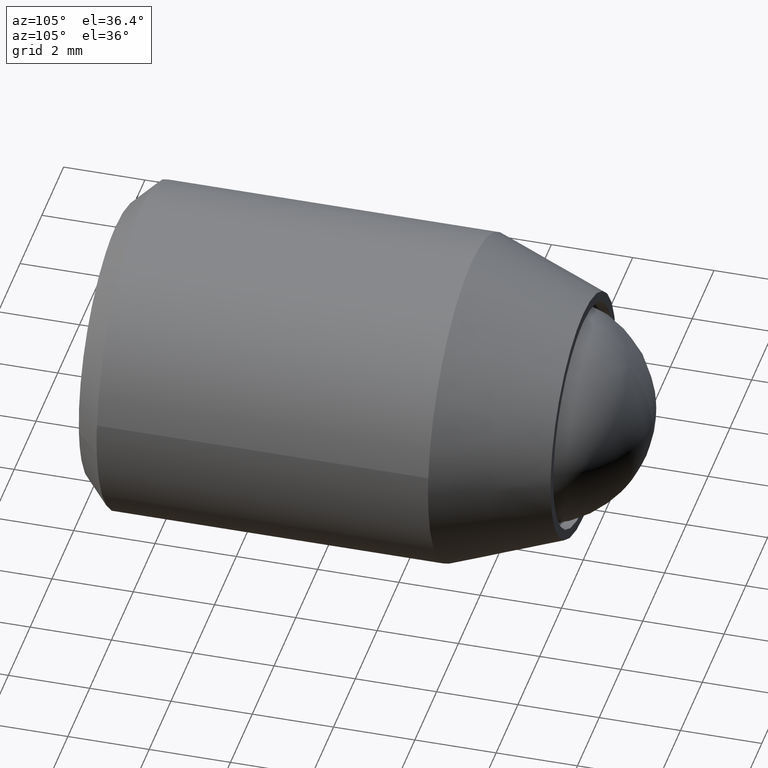
[diagram: clean part render]
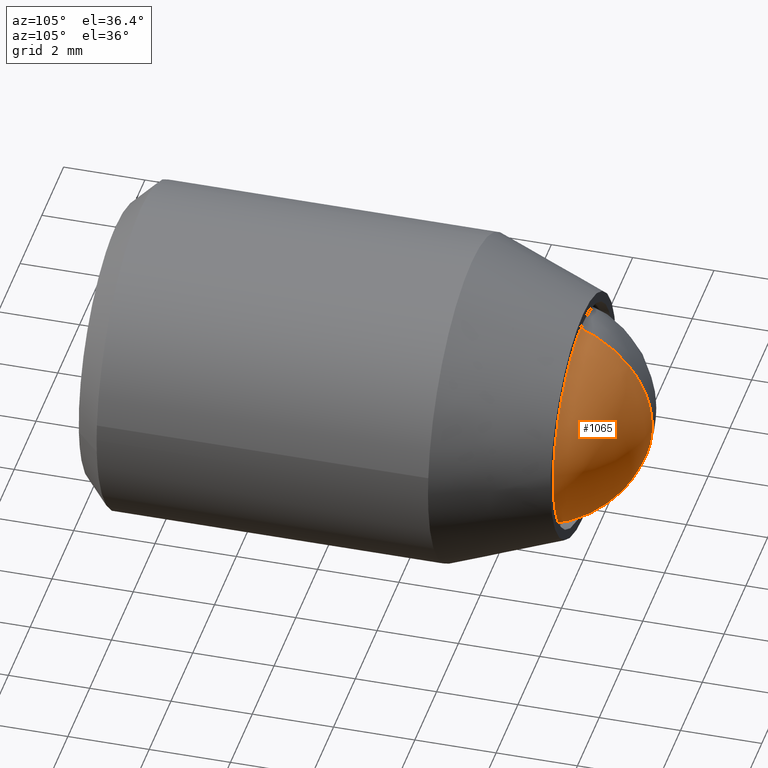
[diagram: same view with one face highlighted and labeled with its STEP entity id]
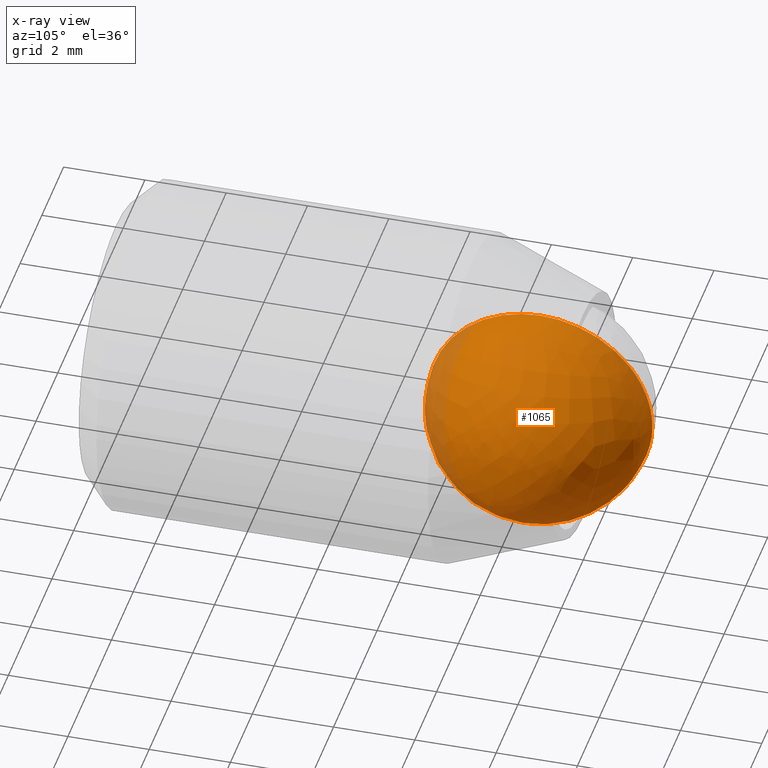
[diagram: x-ray of the same camera — body ghosted, the highlighted face saturated]
A machine part, auxiliary view. The second image highlights one B-rep face of the part: STEP entity #1065.
The next image is the same camera in x-ray: the body ghosted, the highlighted face saturated — about 8% of this face is hidden behind the body in this view.
In plain terms, the highlighted face is a freeform B-spline surface patch.
Its self-contained STEP definition (entity closure, byte-faithful):
#985=CARTESIAN_POINT('',(-1.031250000000000,-2.852640207792473,-1.802640207792447));
#986=CARTESIAN_POINT('',(-0.674528301886792,-2.682579810830922,-2.176773081107861));
#987=CARTESIAN_POINT('',(-0.130952380952381,-1.736720079159054,-2.746880316636110));
#988=CARTESIAN_POINT('',(-0.130952380952381,-0.363279920840998,-2.746880316636110));
#989=CARTESIAN_POINT('',(-0.674528301886792,0.582579810830870,-2.176773081107861));
#990=CARTESIAN_POINT('',(-1.031250000000000,0.752640207792422,-1.802640207792447));
#991=CARTESIAN_POINT('',(-0.674528301886792,-3.226773081107888,-1.632579810830895));
#992=CARTESIAN_POINT('',(-0.130952380952381,-3.110160237477109,-2.060160237477082));
#993=CARTESIAN_POINT('',(0.798387096774193,-1.980394945957418,-2.791184837872177));
#994=CARTESIAN_POINT('',(0.798387096774193,-0.119605054042634,-2.791184837872177));
#995=CARTESIAN_POINT('',(-0.130952380952381,1.010160237477057,-2.060160237477082));
#996=CARTESIAN_POINT('',(-0.674528301886792,1.126773081107835,-1.632579810830895));
#997=CARTESIAN_POINT('',(-0.130952380952381,-3.796880316636136,-0.686720079159027));
#998=CARTESIAN_POINT('',(0.798387096774193,-3.841184837872203,-0.930394945957392));
#999=CARTESIAN_POINT('',(2.749999999999999,-2.492112166233984,-1.442112166233957));
#1000=CARTESIAN_POINT('',(2.749999999999999,0.392112166233932,-1.442112166233957));
#1001=CARTESIAN_POINT('',(0.798387096774193,1.741184837872151,-0.930394945957392));
#1002=CARTESIAN_POINT('',(-0.130952380952381,1.696880316636084,-0.686720079159027));
#1003=CARTESIAN_POINT('',(-0.130952380952381,-3.796880316636136,0.686720079159028));
#1004=CARTESIAN_POINT('',(0.798387096774193,-3.841184837872203,0.930394945957393));
#1005=CARTESIAN_POINT('',(2.749999999999999,-2.492112166233984,1.442112166233959));
#1006=CARTESIAN_POINT('',(2.749999999999999,0.392112166233932,1.442112166233959));
#1007=CARTESIAN_POINT('',(0.798387096774193,1.741184837872151,0.930394945957393));
#1008=CARTESIAN_POINT('',(-0.130952380952381,1.696880316636084,0.686720079159028));
#1009=CARTESIAN_POINT('',(-0.674528301886792,-3.226773081107888,1.632579810830897));
#1010=CARTESIAN_POINT('',(-0.130952380952381,-3.110160237477109,2.060160237477083));
#1011=CARTESIAN_POINT('',(0.798387096774193,-1.980394945957418,2.791184837872177));
#1012=CARTESIAN_POINT('',(0.798387096774193,-0.119605054042634,2.791184837872177));
#1013=CARTESIAN_POINT('',(-0.130952380952381,1.010160237477057,2.060160237477083));
#1014=CARTESIAN_POINT('',(-0.674528301886792,1.126773081107835,1.632579810830897));
#1015=CARTESIAN_POINT('',(-1.031250000000000,-2.852640207792473,1.802640207792448));
#1016=CARTESIAN_POINT('',(-0.674528301886792,-2.682579810830922,2.176773081107862));
#1017=CARTESIAN_POINT('',(-0.130952380952381,-1.736720079159054,2.746880316636111));
#1018=CARTESIAN_POINT('',(-0.130952380952381,-0.363279920840998,2.746880316636111));
#1019=CARTESIAN_POINT('',(-0.674528301886792,0.582579810830870,2.176773081107862));
#1020=CARTESIAN_POINT('',(-1.031250000000000,0.752640207792422,1.802640207792448));
#1028=(BOUNDED_SURFACE()B_SPLINE_SURFACE(2,2,((#985,#991,#997,#1003,#1009,#1015),(#986,#992,#998,#1004,#1010,#1016),(#987,#993,#999,#1005,#1011,#1017),(#988,#994,#1000,#1006,#1012,#1018),(#989,#995,#1001,#1007,#1013,#1019),(#990,#996,#1002,#1008,#1014,#1020)),.UNSPECIFIED.,.F.,.F.,.U.)B_SPLINE_SURFACE_WITH_KNOTS((3,1,1,1,3),(3,1,1,1,3),(0.0,2.535581830741026,5.071163661482052,7.606745492223078,10.142327322964100),(0.0,2.535581830741025,5.071163661482050,7.606745492223075,10.142327322964100),.UNSPECIFIED.)GEOMETRIC_REPRESENTATION_ITEM()RATIONAL_B_SPLINE_SURFACE(((3.200000000000000,2.650000000000000,2.100000000000000,2.100000000000000,2.650000000000000,3.200000000000000),(2.650000000000000,2.100000000000000,1.550000000000000,1.550000000000000,2.100000000000000,2.650000000000000),(2.100000000000000,1.550000000000000,1.0,1.0,1.550000000000000,2.100000000000000),(2.100000000000000,1.550000000000000,1.0,1.0,1.550000000000000,2.100000000000000),(2.650000000000000,2.100000000000000,1.550000000000000,1.550000000000000,2.100000000000000,2.650000000000000),(3.200000000000000,2.650000000000000,2.100000000000000,2.100000000000000,2.650000000000000,3.200000000000000)))REPRESENTATION_ITEM('')SURFACE());
#1029=CARTESIAN_POINT('',(0.0,1.699999999999974,6.092417E-016));
#1030=VERTEX_POINT('',#1029);
#1031=CARTESIAN_POINT('',(0.0,-3.800000000000026,6.092417E-016));
#1032=VERTEX_POINT('',#1031);
#1033=CARTESIAN_POINT('',(0.0,1.699999999999974,6.092417E-016));
#1034=CARTESIAN_POINT('',(0.0,1.699999999999973,2.750000000000000));
#1035=CARTESIAN_POINT('',(0.0,-1.050000000000026,2.750000000000000));
#1036=CARTESIAN_POINT('',(0.0,-3.800000000000026,2.750000000000000));
#1037=CARTESIAN_POINT('',(0.0,-3.800000000000026,6.092417E-016));
#1045=(BOUNDED_CURVE()B_SPLINE_CURVE(2,(#1033,#1034,#1035,#1036,#1037),.UNSPECIFIED.,.F.,.U.)B_SPLINE_CURVE_WITH_KNOTS((3,2,3),(0.0,0.500000000000000,1.0),.UNSPECIFIED.)CURVE()GEOMETRIC_REPRESENTATION_ITEM()RATIONAL_B_SPLINE_CURVE((1.0,0.707106781186548,1.0,0.707106781186548,1.0))REPRESENTATION_ITEM(''));
#1046=EDGE_CURVE('',#1030,#1032,#1045,.T.);
#1047=ORIENTED_EDGE('',*,*,#1046,.T.);
#1048=CARTESIAN_POINT('',(0.0,1.699999999999974,6.092417E-016));
#1049=CARTESIAN_POINT('',(0.0,1.699999999999973,-2.749999999999999));
#1050=CARTESIAN_POINT('',(0.0,-1.050000000000026,-2.750000000000000));
#1051=CARTESIAN_POINT('',(0.0,-3.800000000000026,-2.749999999999999));
#1052=CARTESIAN_POINT('',(0.0,-3.800000000000026,6.092417E-016));
#1060=(BOUNDED_CURVE()B_SPLINE_CURVE(2,(#1048,#1049,#1050,#1051,#1052),.UNSPECIFIED.,.F.,.U.)B_SPLINE_CURVE_WITH_KNOTS((3,2,3),(0.0,0.500000000000000,1.0),.UNSPECIFIED.)CURVE()GEOMETRIC_REPRESENTATION_ITEM()RATIONAL_B_SPLINE_CURVE((1.0,0.707106781186548,1.0,0.707106781186548,1.0))REPRESENTATION_ITEM(''));
#1061=EDGE_CURVE('',#1030,#1032,#1060,.T.);
#1062=ORIENTED_EDGE('',*,*,#1061,.F.);
#1063=EDGE_LOOP('',(#1047,#1062));
#1064=FACE_OUTER_BOUND('',#1063,.T.);
#1065=ADVANCED_FACE('',(#1064),#1028,.T.);